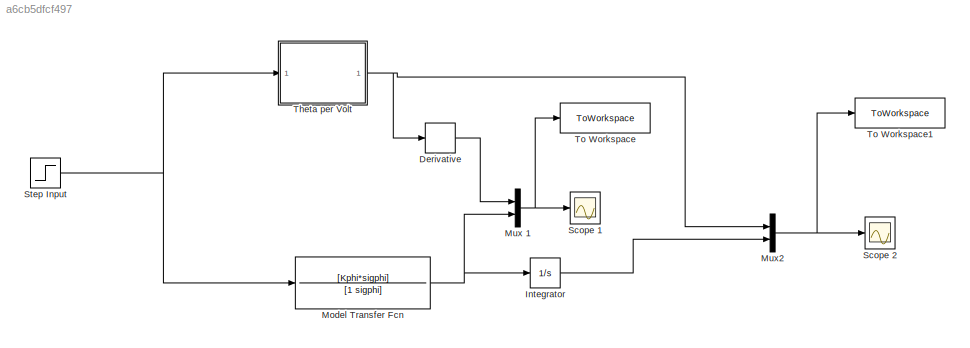
MODEL slx_a6cb5dfcf497
KIND model
CONFIG AbsTol = auto
CONFIG EnableMultiTasking = off
CONFIG FixedStep = auto
CONFIG MaxStep = auto
CONFIG MinStep = auto
CONFIG RelTol = 1e-3
CONFIG SampleTimeConstraint = Unconstrained
CONFIG Solver = VariableStepAuto
CONFIG SolverName = VariableStepAuto
CONFIG StartTime = 0.0
CONFIG StopTime = 10.0
BLOCK [Derivative] Derivative
BLOCK [Integrator] Integrator
  Ports = [1, 1]
BLOCK [TransferFcn] Model Transfer Fcn
  Denominator = [1 sigphi]
  Numerator = [Kphi*sigphi]
BLOCK [Mux] Mux 1
  DisplayOption = bar
  Inputs = 2
  Ports = [2, 1]
BLOCK [Mux] Mux2
  DisplayOption = bar
  Inputs = 2
  Ports = [2, 1]
BLOCK [Scope] Scope 1
  Floating = off
  NumInputPorts = 1
  Ports = [1]
  ScopeSpecificationString = Simulink.scopes.TimeScopeBlockCfg('CurrentConfiguration', extmgr.ConfigurationSet(extmgr.Configuration('Core','General UI',true),extmgr.Configuration('Core','Source UI',true),extmgr.Configuration('Sources','WiredSimulink',true,'DataLoggingVariableName','ScopeData1'),extmgr.Configuration('Visuals','Time Domain',true,'SerializedDisplays',{struct('MinYLimReal','-0.08055','MaxYLimReal','0.72498','YLab...<+1419ch>
BLOCK [Scope] Scope 2
  Floating = off
  NumInputPorts = 1
  Ports = [1]
  ScopeSpecificationString = Simulink.scopes.TimeScopeBlockCfg('CurrentConfiguration', extmgr.ConfigurationSet(extmgr.Configuration('Core','General UI',true),extmgr.Configuration('Core','Source UI',true),extmgr.Configuration('Sources','WiredSimulink',true),extmgr.Configuration('Visuals','Time Domain',true),extmgr.Configuration('Tools','Plot Navigation',true),extmgr.Configuration('Tools','Measurements',true)),'Version','2020a'...<+1ch>
BLOCK [Step] Step Input
  After = 200
  SampleTime = 0
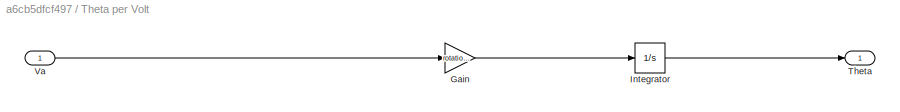
BLOCK [SubSystem] Theta per Volt
  Ports = [1, 1]
  RequestExecContextInheritance = off
BLOCK [Gain] Theta per Volt/Gain
  Gain = rotationalVelocity/Vin
BLOCK [Integrator] Theta per Volt/Integrator
  Ports = [1, 1]
BLOCK [Outport] Theta per Volt/Theta
BLOCK [Inport] Theta per Volt/Va
BLOCK [ToWorkspace] To Workspace
  FixptAsFi = on
  MaxDataPoints = inf
  Ports = [1]
  SampleTime = -1
  SaveFormat = Timeseries
  VariableName = Velocity
BLOCK [ToWorkspace] To Workspace1
  FixptAsFi = on
  MaxDataPoints = inf
  Ports = [1]
  SampleTime = -1
  SaveFormat = Timeseries
  VariableName = Position
LINE Derivative:1 -> Mux 1:1
LINE Integrator:1 -> Mux2:2
NET Model Transfer Fcn:1 -> Integrator:1, Mux 1:2
NET Mux 1:1 -> Scope 1:1, To Workspace:1
NET Mux2:1 -> Scope 2:1, To Workspace1:1
NET Step Input:1 -> Model Transfer Fcn:1, Theta per Volt:1
LINE Theta per Volt/Gain:1 -> Theta per Volt/Integrator:1
LINE Theta per Volt/Integrator:1 -> Theta per Volt/Theta:1
LINE Theta per Volt/Va:1 -> Theta per Volt/Gain:1
NET Theta per Volt:1 -> Derivative:1, Mux2:1
note: NET lines group one-source signal fan-out (src -> all destinations, sorted); 1:1 wires keep LINE
